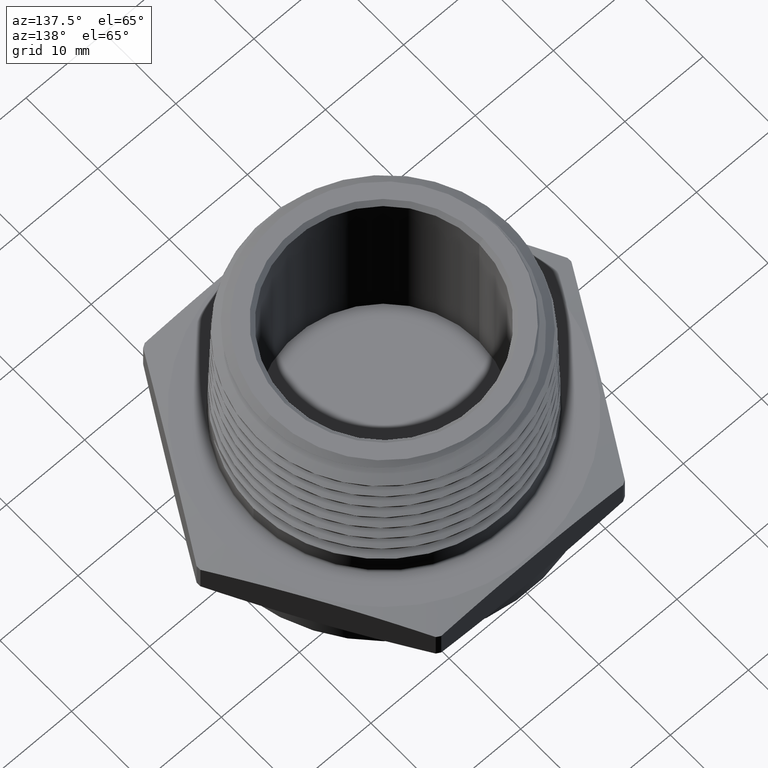
[diagram: clean part render]
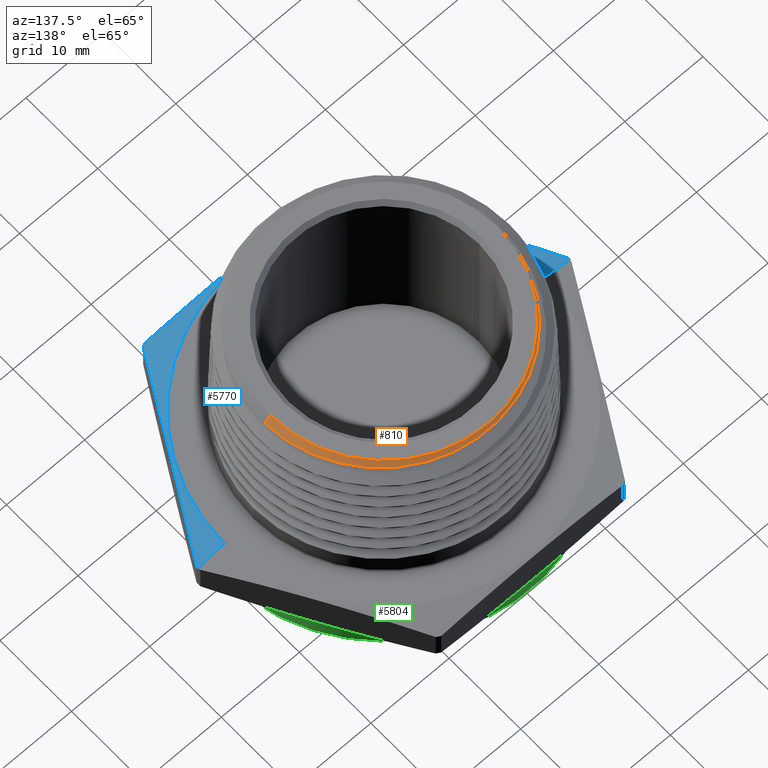
[diagram: same view with three faces highlighted in distinct colors, each labeled with its STEP entity id]
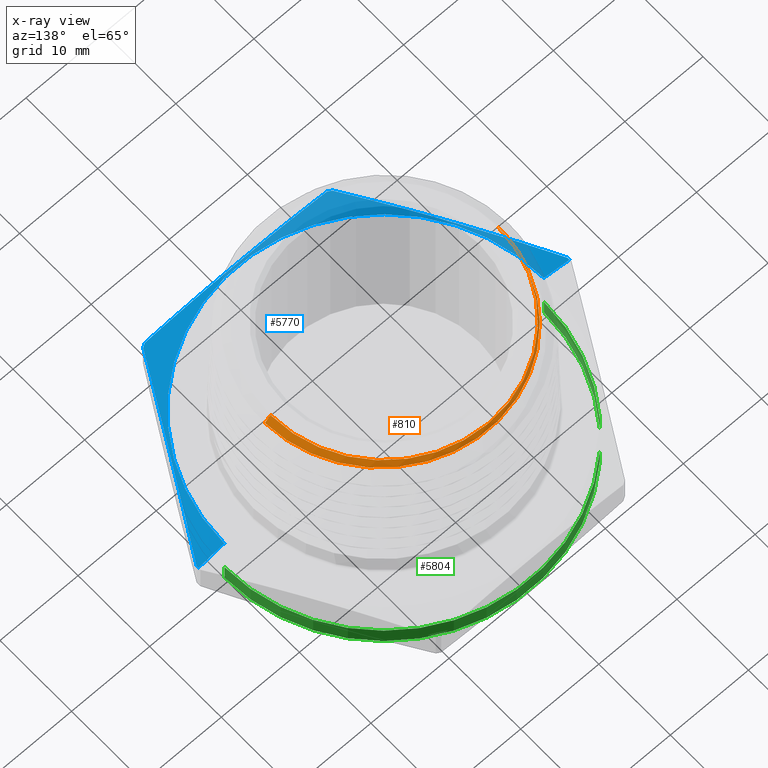
[diagram: x-ray of the same camera — body ghosted, the three highlighted faces saturated]
A machine part, auxiliary view with three faces highlighted in distinct colors.
The next image is the same camera in x-ray (body ghosted, the three faces saturated) — at least one of them is partly hidden behind the body in this view.
Their STEP definitions:

[orange] entity #810 — the highlighted conical surface has half-angle 45 deg.
#103 = LINE ( 'NONE', #6287, #107 ) ;
#104 = CIRCLE ( 'NONE', #3967, 0.5719999999999999500 ) ;
#105 = LINE ( 'NONE', #6220, #106 ) ;
#106 = VECTOR ( 'NONE', #6225, 39.37007874015748100 ) ;
#107 = VECTOR ( 'NONE', #6288, 39.37007874015748100 ) ;
#244 = FACE_OUTER_BOUND ( 'NONE', #1707, .T. ) ;
#810 = ADVANCED_FACE ( 'NONE', ( #244 ), #5546, .T. ) ;
#1672 = ORIENTED_EDGE ( 'NONE', *, *, #3870, .T. ) ;
#1673 = ORIENTED_EDGE ( 'NONE', *, *, #3871, .T. ) ;
#1674 = ORIENTED_EDGE ( 'NONE', *, *, #3872, .T. ) ;
#1675 = ORIENTED_EDGE ( 'NONE', *, *, #3873, .T. ) ;
#1707 = EDGE_LOOP ( 'NONE', ( #1675, #1674, #1673, #1672, #4657 ) ) ;
#3869 = EDGE_CURVE ( 'NONE', #4920, #4884, #105, .T. ) ;
#3870 = EDGE_CURVE ( 'NONE', #4927, #4884, #5841, .T. ) ;
#3871 = EDGE_CURVE ( 'NONE', #4929, #4927, #5842, .T. ) ;
#3872 = EDGE_CURVE ( 'NONE', #4924, #4929, #103, .T. ) ;
#3873 = EDGE_CURVE ( 'NONE', #4920, #4924, #104, .T. ) ;
#3919 = AXIS2_PLACEMENT_3D ( 'NONE', #6124, #6123, #6125 ) ;
#3967 = AXIS2_PLACEMENT_3D ( 'NONE', #6291, #6292, #6293 ) ;
#4412 = CARTESIAN_POINT ( 'NONE',  ( -0.5731157824945870600, -6.402768735150616600E-017, 0.9888842175054130000 ) ) ;
#4415 = CARTESIAN_POINT ( 'NONE',  ( 0.5719999999999999500, 7.351925070738971400E-017, 0.9900000000000001000 ) ) ;
#4444 = CARTESIAN_POINT ( 'NONE',  ( -0.5719999999999999500, 0.0000000000000000000, 0.9900000000000001000 ) ) ;
#4447 = CARTESIAN_POINT ( 'NONE',  ( -0.5710473003760741000, 0.04883394669261256100, 0.9888684468260414700 ) ) ;
#4449 = CARTESIAN_POINT ( 'NONE',  ( 0.6003489249177895700, 1.451294246634139900E-016, 0.9616510750822108200 ) ) ;
#4657 = ORIENTED_EDGE ( 'NONE', *, *, #3869, .F. ) ;
#4884 = VERTEX_POINT ( 'NONE', #4412 ) ;
#4920 = VERTEX_POINT ( 'NONE', #4444 ) ;
#4924 = VERTEX_POINT ( 'NONE', #4415 ) ;
#4927 = VERTEX_POINT ( 'NONE', #4447 ) ;
#4929 = VERTEX_POINT ( 'NONE', #4449 ) ;
#5546 = CONICAL_SURFACE ( 'NONE', #3919, 0.6592028279056130200, 0.7853981633974541600 ) ;
#5841 = B_SPLINE_CURVE_WITH_KNOTS ( 'NONE', 3,
 ( #6228, #6229, #6235, #6236 ),
 .UNSPECIFIED., .F., .F.,
 ( 4, 4 ),
 ( 2.659436816710744500E-006, 0.001243514361797791200 ),
 .UNSPECIFIED. ) ;
#5842 = B_SPLINE_CURVE_WITH_KNOTS ( 'NONE', 3,
 ( #6233, #6234, #6239, #6240, #6241, #6242, #6243, #6244, #6245, #6246, #6247, #6248, #6249, #6250, #6251, #6252, #6253, #6254, #6255, #6256, #6257, #6258, #6259, #6260, #6261, #6262, #6263, #6264, #6265, #6266, #6267, #6268, #6269, #6270, #6271, #6272, #6273, #6274, #6275, #6276, #6277, #6278, #6279, #6280, #6281, #6282, #6283, #6284, #6285, #6286 ),
 .UNSPECIFIED., .F., .F.,
 ( 4, 2, 2, 2, 2, 2, 2, 2, 2, 2, 2, 2, 2, 2, 2, 2, 2, 2, 2, 2, 2, 2, 2, 2, 4 ),
 ( 0.07556429552137339200, 0.07698891424477019600, 0.07841353296816699900, 0.08126277041496061900, 0.08268738913835742300, 0.08411200786175424000, 0.08696124530854784700, 0.08838586403194465000, 0.08981048275534145300, 0.09265972020213506000, 0.09408433892553186300, 0.09550895764892866600, 0.09835819509572227300, 0.09978281381911907600, 0.1012074325425158800, 0.1040566699893094900, 0.1069059074361030900, 0.1083305261594998800, 0.1097551448828966900, 0.1126043823296902800, 0.1140290010530870800, 0.1154536197764838800, 0.1183028572232774900, 0.1197274759466742900, 0.1211520946700711000 ),
 .UNSPECIFIED. ) ;
#6123 = DIRECTION ( 'NONE',  ( -0.0000000000000000000, -0.0000000000000000000, -1.000000000000000000 ) ) ;
#6124 = CARTESIAN_POINT ( 'NONE',  ( 0.0000000000000000000, 0.0000000000000000000, 0.9027971720943881500 ) ) ;
#6125 = DIRECTION ( 'NONE',  ( -1.000000000000000000, 0.0000000000000000000, 0.0000000000000000000 ) ) ;
#6220 = CARTESIAN_POINT ( 'NONE',  ( -0.6592028279056130200, 0.0000000000000000000, 0.9027971720943881500 ) ) ;
#6225 = DIRECTION ( 'NONE',  ( -0.7071067811865516800, 0.0000000000000000000, -0.7071067811865433500 ) ) ;
#6228 = CARTESIAN_POINT ( 'NONE',  ( -0.5710473003760741000, 0.04883394669261256100, 0.9888684468260414700 ) ) ;
#6229 = CARTESIAN_POINT ( 'NONE',  ( -0.5724338212565235300, 0.03255602563734828800, 0.9888724475821045700 ) ) ;
#6233 = CARTESIAN_POINT ( 'NONE',  ( 0.6003489249177895700, 1.451294246634139900E-016, 0.9616510750822108200 ) ) ;
#6234 = CARTESIAN_POINT ( 'NONE',  ( 0.6000732363552161400, 0.01858761569745257300, 0.9619267636447845800 ) ) ;
#6235 = CARTESIAN_POINT ( 'NONE',  ( -0.5731258646697530200, 0.01626922460404652000, 0.9888741353302471500 ) ) ;
#6236 = CARTESIAN_POINT ( 'NONE',  ( -0.5731157824945870600, -6.402768735150616600E-017, 0.9888842175054130000 ) ) ;
#6239 = CARTESIAN_POINT ( 'NONE',  ( 0.5989350494765193200, 0.03717477239179735300, 0.9622036111339674600 ) ) ;
#6240 = CARTESIAN_POINT ( 'NONE',  ( 0.5949046711552946600, 0.07434816211269725000, 0.9627590068471323400 ) ) ;
#6241 = CARTESIAN_POINT ( 'NONE',  ( 0.5919890574846097300, 0.09303364403351271900, 0.9630390480304841200 ) ) ;
#6242 = CARTESIAN_POINT ( 'NONE',  ( 0.5806908371224498400, 0.1481859819250520600, 0.9638757578234310500 ) ) ;
#6243 = CARTESIAN_POINT ( 'NONE',  ( 0.5698271110682180400, 0.1837768787901348200, 0.9644285039566874400 ) ) ;
#6244 = CARTESIAN_POINT ( 'NONE',  ( 0.5486474212559143700, 0.2354370990188204600, 0.9652602541773556100 ) ) ;
#6245 = CARTESIAN_POINT ( 'NONE',  ( 0.5407668630676264500, 0.2523671143134478300, 0.9655393451526211900 ) ) ;
#6246 = CARTESIAN_POINT ( 'NONE',  ( 0.5233195688552846300, 0.2856311836733430600, 0.9661007665422104400 ) ) ;
#6247 = CARTESIAN_POINT ( 'NONE',  ( 0.5137594619195979800, 0.3019281880691120900, 0.9663823717997966900 ) ) ;
#6248 = CARTESIAN_POINT ( 'NONE',  ( 0.4831520203107527200, 0.3488898042959569500, 0.9672195829443172000 ) ) ;
#6249 = CARTESIAN_POINT ( 'NONE',  ( 0.4600165343549558200, 0.3779945035718563800, 0.9677755588220768900 ) ) ;
#6250 = CARTESIAN_POINT ( 'NONE',  ( 0.4212286786767284200, 0.4183558434108202200, 0.9686138534424612000 ) ) ;
#6251 = CARTESIAN_POINT ( 'NONE',  ( 0.4075658298678746500, 0.4312960954091950000, 0.9688963202587470600 ) ) ;
#6252 = CARTESIAN_POINT ( 'NONE',  ( 0.3790241588013773000, 0.4558461297016938000, 0.9694624448605696500 ) ) ;
#6253 = CARTESIAN_POINT ( 'NONE',  ( 0.3642780356287145200, 0.4673507346880662100, 0.9697430456486924000 ) ) ;
#6254 = CARTESIAN_POINT ( 'NONE',  ( 0.3186556270342336700, 0.4996209750764872800, 0.9705822614539271200 ) ) ;
#6255 = CARTESIAN_POINT ( 'NONE',  ( 0.2864057191434908300, 0.5181598231094874900, 0.9711417277586502600 ) ) ;
#6256 = CARTESIAN_POINT ( 'NONE',  ( 0.2352245649864923800, 0.5414186321692576700, 0.9719884355867389700 ) ) ;
#6257 = CARTESIAN_POINT ( 'NONE',  ( 0.2176290813559556600, 0.5484199366889465100, 0.9722739128348315600 ) ) ;
#6258 = CARTESIAN_POINT ( 'NONE',  ( 0.1822393680069179200, 0.5605785998740207000, 0.9728399472455107100 ) ) ;
#6259 = CARTESIAN_POINT ( 'NONE',  ( 0.1643634321316417000, 0.5657806178790346600, 0.9731211133481619800 ) ) ;
#6260 = CARTESIAN_POINT ( 'NONE',  ( 0.1102040051871851400, 0.5788107650661300500, 0.9739625730157389600 ) ) ;
#6261 = CARTESIAN_POINT ( 'NONE',  ( 0.07339302927666138700, 0.5840827200533209600, 0.9745248357054928600 ) ) ;
#6262 = CARTESIAN_POINT ( 'NONE',  ( 0.01707939638013577700, 0.5866733085706965500, 0.9753789521480762400 ) ) ;
#6263 = CARTESIAN_POINT ( 'NONE',  ( -0.001798906118421606800, 0.5866292519187529300, 0.9756648350302132800 ) ) ;
#6264 = CARTESIAN_POINT ( 'NONE',  ( -0.03907608188203218200, 0.5847603048510128200, 0.9762326701540377000 ) ) ;
#6265 = CARTESIAN_POINT ( 'NONE',  ( -0.05757500984745463800, 0.5829423836825901000, 0.9765152277992327200 ) ) ;
#6266 = CARTESIAN_POINT ( 'NONE',  ( -0.1126594313444263800, 0.5748803703930739400, 0.9773612706635251800 ) ) ;
#6267 = CARTESIAN_POINT ( 'NONE',  ( -0.1488358129717253500, 0.5660489895973815900, 0.9779272341222663400 ) ) ;
#6268 = CARTESIAN_POINT ( 'NONE',  ( -0.2200385180292532300, 0.5411141672924901800, 0.9790772525848306900 ) ) ;
#6269 = CARTESIAN_POINT ( 'NONE',  ( -0.2538721937378148900, 0.5254224310857155100, 0.9796455792966574100 ) ) ;
#6270 = CARTESIAN_POINT ( 'NONE',  ( -0.3020339597548619700, 0.4972575459663258200, 0.9804986739193822800 ) ) ;
#6271 = CARTESIAN_POINT ( 'NONE',  ( -0.3176558748128074900, 0.4870917304100394500, 0.9807830781977744400 ) ) ;
#6272 = CARTESIAN_POINT ( 'NONE',  ( -0.3480151422091841700, 0.4651682544163461800, 0.9813576439184379400 ) ) ;
#6273 = CARTESIAN_POINT ( 'NONE',  ( -0.3628147073089506600, 0.4533481846642707400, 0.9816483219105138800 ) ) ;
#6274 = CARTESIAN_POINT ( 'NONE',  ( -0.4049819428716281400, 0.4161752023060952300, 0.9825104827527501000 ) ) ;
#6275 = CARTESIAN_POINT ( 'NONE',  ( -0.4303770259811615700, 0.3889893821317873500, 0.9830804485260878900 ) ) ;
#6276 = CARTESIAN_POINT ( 'NONE',  ( -0.4644498876695880600, 0.3446536968220115200, 0.9839407040076722000 ) ) ;
#6277 = CARTESIAN_POINT ( 'NONE',  ( -0.4751332227363855900, 0.3292784750598428100, 0.9842280017560798300 ) ) ;
#6278 = CARTESIAN_POINT ( 'NONE',  ( -0.4950992050579710000, 0.2972887220931367800, 0.9848099138048384000 ) ) ;
#6279 = CARTESIAN_POINT ( 'NONE',  ( -0.5042356926912332500, 0.2809058767302489700, 0.9850995940238611600 ) ) ;
#6280 = CARTESIAN_POINT ( 'NONE',  ( -0.5290985633177736100, 0.2307901551903368800, 0.9859629199106558800 ) ) ;
#6281 = CARTESIAN_POINT ( 'NONE',  ( -0.5423412973290816500, 0.1960285437307186000, 0.9865360208867406400 ) ) ;
#6282 = CARTESIAN_POINT ( 'NONE',  ( -0.5571300505649069400, 0.1418286134634841000, 0.9874056835756186400 ) ) ;
#6283 = CARTESIAN_POINT ( 'NONE',  ( -0.5612143174491501800, 0.1233483057429700500, 0.9876978361014199200 ) ) ;
#6284 = CARTESIAN_POINT ( 'NONE',  ( -0.5675052333006317400, 0.08627915767711481800, 0.9882814769487638900 ) ) ;
#6285 = CARTESIAN_POINT ( 'NONE',  ( -0.5697339489273478600, 0.06763670618840776600, 0.9885732075468080000 ) ) ;
#6286 = CARTESIAN_POINT ( 'NONE',  ( -0.5710473003760741000, 0.04883394669261256100, 0.9888684468260414700 ) ) ;
#6287 = CARTESIAN_POINT ( 'NONE',  ( 0.6592028279056130200, 8.072906331834924400E-017, 0.9027971720943881500 ) ) ;
#6288 = DIRECTION ( 'NONE',  ( 0.7071067811865516800, 8.659560562354983400E-017, -0.7071067811865433500 ) ) ;
#6291 = CARTESIAN_POINT ( 'NONE',  ( 0.0000000000000000000, 0.0000000000000000000, 0.9900000000000001000 ) ) ;
#6292 = DIRECTION ( 'NONE',  ( -0.0000000000000000000, -0.0000000000000000000, -1.000000000000000000 ) ) ;
#6293 = DIRECTION ( 'NONE',  ( -1.000000000000000000, 0.0000000000000000000, 0.0000000000000000000 ) ) ;

[blue] entity #5770 — the highlighted conical surface has half-angle 78 deg.
#63 = LINE ( 'NONE', #5138, #69 ) ;
#69 = VECTOR ( 'NONE', #5201, 39.37007874015748100 ) ;
#72 = CIRCLE ( 'NONE', #3953, 0.9350809387790897100 ) ;
#73 = LINE ( 'NONE', #5275, #78 ) ;
#78 = VECTOR ( 'NONE', #5223, 39.37007874015748900 ) ;
#98 = CIRCLE ( 'NONE', #3964, 0.8049999999999998300 ) ;
#114 = CIRCLE ( 'NONE', #3970, 0.9350809387790897100 ) ;
#127 = CIRCLE ( 'NONE', #3971, 0.9350809387790897100 ) ;
#135 = CIRCLE ( 'NONE', #3973, 0.9350809387790897100 ) ;
#159 = FACE_OUTER_BOUND ( 'NONE', #1732, .T. ) ;
#166 = CONICAL_SURFACE ( 'NONE', #3990, 0.8049999999999998300, 1.361356816555583800 ) ;
#1732 = EDGE_LOOP ( 'NONE', ( #4663, #4662, #4661, #4660, #4659, #4658, #5822, #5819, #4711, #4710 ) ) ;
#3828 = EDGE_CURVE ( 'NONE', #4837, #4755, #63, .T. ) ;
#3832 = EDGE_CURVE ( 'NONE', #4770, #4790, #72, .T. ) ;
#3836 = EDGE_CURVE ( 'NONE', #4801, #4790, #73, .T. ) ;
#3858 = EDGE_CURVE ( 'NONE', #4837, #4801, #98, .T. ) ;
#3883 = EDGE_CURVE ( 'NONE', #4890, #4922, #5850, .T. ) ;
#3884 = EDGE_CURVE ( 'NONE', #4760, #4770, #5851, .T. ) ;
#3891 = EDGE_CURVE ( 'NONE', #4755, #4926, #114, .T. ) ;
#3894 = EDGE_CURVE ( 'NONE', #4763, #4890, #127, .T. ) ;
#3899 = EDGE_CURVE ( 'NONE', #4922, #4760, #135, .T. ) ;
#3910 = EDGE_CURVE ( 'NONE', #4926, #4763, #5855, .T. ) ;
#3953 = AXIS2_PLACEMENT_3D ( 'NONE', #5220, #5221, #5222 ) ;
#3964 = AXIS2_PLACEMENT_3D ( 'NONE', #5487, #5488, #5489 ) ;
#3970 = AXIS2_PLACEMENT_3D ( 'NONE', #6548, #6549, #6550 ) ;
#3971 = AXIS2_PLACEMENT_3D ( 'NONE', #6556, #6557, #6558 ) ;
#3973 = AXIS2_PLACEMENT_3D ( 'NONE', #6566, #6567, #6568 ) ;
#3990 = AXIS2_PLACEMENT_3D ( 'NONE', #4474, #4475, #4473 ) ;
#4353 = CARTESIAN_POINT ( 'NONE',  ( -0.4765993594327140900, -0.8045056946077573400, 0.1723504429143089300 ) ) ;
#4355 = CARTESIAN_POINT ( 'NONE',  ( 0.4765993594327142000, -0.8045056946077573400, 0.1723504429143087900 ) ) ;
#4361 = CARTESIAN_POINT ( 'NONE',  ( -0.9350220487359204300, -0.01049430539224296300, 0.1723504429143089500 ) ) ;
#4372 = CARTESIAN_POINT ( 'NONE',  ( -0.8049999999999998300, 0.0000000000000000000, 0.2000000000000000100 ) ) ;
#4380 = CARTESIAN_POINT ( 'NONE',  ( -0.9350809387790897100, 0.0000000000000000000, 0.1723504429143089500 ) ) ;
#4388 = CARTESIAN_POINT ( 'NONE',  ( 0.8049999999999998300, 9.858406733136191200E-017, 0.1999999999999998200 ) ) ;
#4414 = CARTESIAN_POINT ( 'NONE',  ( -0.4584226893032063400, -0.8149999999999997200, 0.1723504429143089300 ) ) ;
#4416 = CARTESIAN_POINT ( 'NONE',  ( 0.4584226893032063400, -0.8149999999999997200, 0.1723504429143087900 ) ) ;
#4435 = CARTESIAN_POINT ( 'NONE',  ( 0.9350220487359204300, -0.01049430539224262100, 0.1723504429143087600 ) ) ;
#4473 = DIRECTION ( 'NONE',  ( -1.000000000000000000, 0.0000000000000000000, 1.272599997048570100E-016 ) ) ;
#4474 = CARTESIAN_POINT ( 'NONE',  ( 2.509973095904768000E-017, 0.0000000000000000000, 0.1999999999999999300 ) ) ;
#4475 = DIRECTION ( 'NONE',  ( -1.254986547952384500E-016, -0.0000000000000000000, -1.000000000000000000 ) ) ;
#4658 = ORIENTED_EDGE ( 'NONE', *, *, #3899, .F. ) ;
#4659 = ORIENTED_EDGE ( 'NONE', *, *, #3884, .F. ) ;
#4660 = ORIENTED_EDGE ( 'NONE', *, *, #3832, .F. ) ;
#4661 = ORIENTED_EDGE ( 'NONE', *, *, #3836, .T. ) ;
#4662 = ORIENTED_EDGE ( 'NONE', *, *, #3858, .T. ) ;
#4663 = ORIENTED_EDGE ( 'NONE', *, *, #3828, .F. ) ;
#4710 = ORIENTED_EDGE ( 'NONE', *, *, #3891, .F. ) ;
#4711 = ORIENTED_EDGE ( 'NONE', *, *, #3910, .F. ) ;
#4755 = VERTEX_POINT ( 'NONE', #6631 ) ;
#4760 = VERTEX_POINT ( 'NONE', #4353 ) ;
#4763 = VERTEX_POINT ( 'NONE', #4355 ) ;
#4770 = VERTEX_POINT ( 'NONE', #4361 ) ;
#4790 = VERTEX_POINT ( 'NONE', #4380 ) ;
#4801 = VERTEX_POINT ( 'NONE', #4372 ) ;
#4837 = VERTEX_POINT ( 'NONE', #4388 ) ;
#4890 = VERTEX_POINT ( 'NONE', #4416 ) ;
#4922 = VERTEX_POINT ( 'NONE', #4414 ) ;
#4926 = VERTEX_POINT ( 'NONE', #4435 ) ;
#5138 = CARTESIAN_POINT ( 'NONE',  ( 0.8049999999999998300, 9.858406733136191200E-017, 0.1999999999999998200 ) ) ;
#5201 = DIRECTION ( 'NONE',  ( 0.9781476007338069100, 1.197885328332319900E-016, -0.2079116908177528500 ) ) ;
#5220 = CARTESIAN_POINT ( 'NONE',  ( 2.162974873910929900E-017, 0.0000000000000000000, 0.1723504429143088700 ) ) ;
#5221 = DIRECTION ( 'NONE',  ( -1.254986547952384500E-016, -0.0000000000000000000, -1.000000000000000000 ) ) ;
#5222 = DIRECTION ( 'NONE',  ( -1.000000000000000000, 0.0000000000000000000, 1.095566121753788100E-016 ) ) ;
#5223 = DIRECTION ( 'NONE',  ( -0.9781476007338071300, 0.0000000000000000000, -0.2079116908177526300 ) ) ;
#5275 = CARTESIAN_POINT ( 'NONE',  ( -0.8049999999999998300, 0.0000000000000000000, 0.2000000000000000100 ) ) ;
#5487 = CARTESIAN_POINT ( 'NONE',  ( 2.509973095904768000E-017, 0.0000000000000000000, 0.1999999999999999300 ) ) ;
#5488 = DIRECTION ( 'NONE',  ( -1.254986547952384500E-016, -0.0000000000000000000, -1.000000000000000000 ) ) ;
#5489 = DIRECTION ( 'NONE',  ( -1.000000000000000000, 0.0000000000000000000, 1.272599997048570100E-016 ) ) ;
#5770 = ADVANCED_FACE ( 'NONE', ( #159 ), #166, .T. ) ;
#5819 = ORIENTED_EDGE ( 'NONE', *, *, #3894, .F. ) ;
#5822 = ORIENTED_EDGE ( 'NONE', *, *, #3883, .F. ) ;
#5850 = B_SPLINE_CURVE_WITH_KNOTS ( 'NONE', 3,
 ( #6516, #6466, #6465, #6518, #6519, #6520, #6521, #6522, #6523, #6524 ),
 .UNSPECIFIED., .F., .F.,
 ( 4, 2, 2, 2, 4 ),
 ( 0.04548648765936419400, 0.05132590599875511100, 0.05716532433814602900, 0.06300474267753694600, 0.06884416101692786300 ),
 .UNSPECIFIED. ) ;
#5851 = B_SPLINE_CURVE_WITH_KNOTS ( 'NONE', 3,
 ( #6527, #6526, #6515, #6528, #6529, #6530, #6531, #6532, #6533 ),
 .UNSPECIFIED., .F., .F.,
 ( 4, 2, 1, 2, 4 ),
 ( 1.919160924773306300E-006, 0.005823887315075492400, 0.01164585546922621200, 0.01746782362337692700, 0.02328979177752764000 ),
 .UNSPECIFIED. ) ;
#5855 = B_SPLINE_CURVE_WITH_KNOTS ( 'NONE', 3,
 ( #6619, #6614, #6615, #6620, #6621, #6622, #6623, #6624, #6625 ),
 .UNSPECIFIED., .F., .F.,
 ( 4, 2, 1, 2, 4 ),
 ( 1.919160924749535500E-006, 0.005823887315075467300, 0.01164585546922618400, 0.01746782362337690300, 0.02328979177752761900 ),
 .UNSPECIFIED. ) ;
#6465 = CARTESIAN_POINT ( 'NONE',  ( 0.3059085874836962000, -0.8149999999999997200, 0.1867333030325142000 ) ) ;
#6466 = CARTESIAN_POINT ( 'NONE',  ( 0.3821825396903712500, -0.8149999999999997200, 0.1802951000004681100 ) ) ;
#6515 = CARTESIAN_POINT ( 'NONE',  ( -0.5530031409832485400, -0.6721704630718383600, 0.1867569098631996800 ) ) ;
#6516 = CARTESIAN_POINT ( 'NONE',  ( 0.4584226893032063400, -0.8149999999999997200, 0.1723504429143087900 ) ) ;
#6518 = CARTESIAN_POINT ( 'NONE',  ( 0.1532691551096953300, -0.8149999999999996100, 0.1955306532691248300 ) ) ;
#6519 = CARTESIAN_POINT ( 'NONE',  ( 0.07690311260575342900, -0.8149999999999996100, 0.1978647392526785800 ) ) ;
#6520 = CARTESIAN_POINT ( 'NONE',  ( -0.07593328554225364800, -0.8149999999999995000, 0.1978840681878027100 ) ) ;
#6521 = CARTESIAN_POINT ( 'NONE',  ( -0.1524036573554993200, -0.8149999999999999500, 0.1955685905400196500 ) ) ;
#6522 = CARTESIAN_POINT ( 'NONE',  ( -0.3054378654914723400, -0.8149999999999996100, 0.1867722747430926900 ) ) ;
#6523 = CARTESIAN_POINT ( 'NONE',  ( -0.3820727360291162900, -0.8149999999999996100, 0.1803065421663073400 ) ) ;
#6524 = CARTESIAN_POINT ( 'NONE',  ( -0.4584226893032063400, -0.8149999999999997200, 0.1723504429143089300 ) ) ;
#6526 = CARTESIAN_POINT ( 'NONE',  ( -0.5148012502079814000, -0.7383380788397977400, 0.1803121513787769900 ) ) ;
#6527 = CARTESIAN_POINT ( 'NONE',  ( -0.4765993594327140900, -0.8045056946077573400, 0.1723504429143089300 ) ) ;
#6528 = CARTESIAN_POINT ( 'NONE',  ( -0.6294069225337829400, -0.5398352315359192800, 0.1955505306662888000 ) ) ;
#6529 = CARTESIAN_POINT ( 'NONE',  ( -0.7058107040843174500, -0.4075000000000003600, 0.2001983381003110100 ) ) ;
#6530 = CARTESIAN_POINT ( 'NONE',  ( -0.7822144856348517400, -0.2751647684640809400, 0.1955505306662887500 ) ) ;
#6531 = CARTESIAN_POINT ( 'NONE',  ( -0.8586182671853861400, -0.1428295369281619400, 0.1867569098631997600 ) ) ;
#6532 = CARTESIAN_POINT ( 'NONE',  ( -0.8968201579606531700, -0.07666192116020245600, 0.1803121513787769000 ) ) ;
#6533 = CARTESIAN_POINT ( 'NONE',  ( -0.9350220487359204300, -0.01049430539224296300, 0.1723504429143089500 ) ) ;
#6548 = CARTESIAN_POINT ( 'NONE',  ( 2.162974873910929900E-017, 0.0000000000000000000, 0.1723504429143088700 ) ) ;
#6549 = DIRECTION ( 'NONE',  ( -1.254986547952384500E-016, -0.0000000000000000000, -1.000000000000000000 ) ) ;
#6550 = DIRECTION ( 'NONE',  ( -1.000000000000000000, 0.0000000000000000000, 1.095566121753788100E-016 ) ) ;
#6556 = CARTESIAN_POINT ( 'NONE',  ( 2.162974873910929900E-017, 0.0000000000000000000, 0.1723504429143088700 ) ) ;
#6557 = DIRECTION ( 'NONE',  ( -1.254986547952384500E-016, -0.0000000000000000000, -1.000000000000000000 ) ) ;
#6558 = DIRECTION ( 'NONE',  ( -1.000000000000000000, 0.0000000000000000000, 1.095566121753788100E-016 ) ) ;
#6566 = CARTESIAN_POINT ( 'NONE',  ( 2.162974873910929900E-017, 0.0000000000000000000, 0.1723504429143088700 ) ) ;
#6567 = DIRECTION ( 'NONE',  ( -1.254986547952384500E-016, -0.0000000000000000000, -1.000000000000000000 ) ) ;
#6568 = DIRECTION ( 'NONE',  ( -1.000000000000000000, 0.0000000000000000000, 1.095566121753788100E-016 ) ) ;
#6614 = CARTESIAN_POINT ( 'NONE',  ( 0.8968201579606535100, -0.07666192116020210900, 0.1803121513787767600 ) ) ;
#6615 = CARTESIAN_POINT ( 'NONE',  ( 0.8586182671853862500, -0.1428295369281616700, 0.1867569098631995100 ) ) ;
#6619 = CARTESIAN_POINT ( 'NONE',  ( 0.9350220487359204300, -0.01049430539224262100, 0.1723504429143087600 ) ) ;
#6620 = CARTESIAN_POINT ( 'NONE',  ( 0.7822144856348515200, -0.2751647684640808300, 0.1955505306662885200 ) ) ;
#6621 = CARTESIAN_POINT ( 'NONE',  ( 0.7058107040843174500, -0.4074999999999997000, 0.2001983381003107400 ) ) ;
#6622 = CARTESIAN_POINT ( 'NONE',  ( 0.6294069225337828300, -0.5398352315359189500, 0.1955505306662886400 ) ) ;
#6623 = CARTESIAN_POINT ( 'NONE',  ( 0.5530031409832486500, -0.6721704630718381400, 0.1867569098631996800 ) ) ;
#6624 = CARTESIAN_POINT ( 'NONE',  ( 0.5148012502079814000, -0.7383380788397977400, 0.1803121513787768200 ) ) ;
#6625 = CARTESIAN_POINT ( 'NONE',  ( 0.4765993594327142000, -0.8045056946077573400, 0.1723504429143087900 ) ) ;
#6631 = CARTESIAN_POINT ( 'NONE',  ( 0.9350809387790897100, 1.145143878619514100E-016, 0.1723504429143087600 ) ) ;

[green] entity #5804 — the highlighted cylindrical surface (partial cylindrical patch) has radius 20.447 mm, axis along (-0, -0, 1).
#10 = CIRCLE ( 'NONE', #3937, 0.8049999999999998300 ) ;
#51 = LINE ( 'NONE', #3571, #52 ) ;
#52 = VECTOR ( 'NONE', #3572, 39.37007874015748100 ) ;
#57 = CIRCLE ( 'NONE', #3947, 0.8049999999999998300 ) ;
#88 = LINE ( 'NONE', #5458, #90 ) ;
#90 = VECTOR ( 'NONE', #5459, 39.37007874015748100 ) ;
#214 = FACE_OUTER_BOUND ( 'NONE', #283, .T. ) ;
#216 = CYLINDRICAL_SURFACE ( 'NONE', #1540, 0.8049999999999998300 ) ;
#283 = EDGE_LOOP ( 'NONE', ( #1593, #1592, #1591, #1590 ) ) ;
#744 = DIRECTION ( 'NONE',  ( 1.000000000000000000, 0.0000000000000000000, 0.0000000000000000000 ) ) ;
#746 = CARTESIAN_POINT ( 'NONE',  ( 0.0000000000000000000, 0.0000000000000000000, -0.1200000000000000000 ) ) ;
#747 = DIRECTION ( 'NONE',  ( -0.0000000000000000000, -0.0000000000000000000, 1.000000000000000000 ) ) ;
#1540 = AXIS2_PLACEMENT_3D ( 'NONE', #746, #747, #744 ) ;
#1590 = ORIENTED_EDGE ( 'NONE', *, *, #3849, .F. ) ;
#1591 = ORIENTED_EDGE ( 'NONE', *, *, #3811, .T. ) ;
#1592 = ORIENTED_EDGE ( 'NONE', *, *, #3807, .T. ) ;
#1593 = ORIENTED_EDGE ( 'NONE', *, *, #3771, .T. ) ;
#3571 = CARTESIAN_POINT ( 'NONE',  ( -0.8049999999999998300, 9.858406733136190000E-017, -0.1200000000000000000 ) ) ;
#3572 = DIRECTION ( 'NONE',  ( -0.0000000000000000000, -0.0000000000000000000, 1.000000000000000000 ) ) ;
#3677 = CARTESIAN_POINT ( 'NONE',  ( 0.0000000000000000000, 0.0000000000000000000, -0.008097840331950318200 ) ) ;
#3678 = DIRECTION ( 'NONE',  ( -6.274932739761922300E-017, -0.0000000000000000000, -1.000000000000000000 ) ) ;
#3679 = DIRECTION ( 'NONE',  ( -1.000000000000000000, 0.0000000000000000000, 6.230437485550291600E-017 ) ) ;
#3771 = EDGE_CURVE ( 'NONE', #4757, #4758, #10, .T. ) ;
#3807 = EDGE_CURVE ( 'NONE', #4758, #4832, #51, .T. ) ;
#3811 = EDGE_CURVE ( 'NONE', #4832, #4804, #57, .T. ) ;
#3849 = EDGE_CURVE ( 'NONE', #4757, #4804, #88, .T. ) ;
#3937 = AXIS2_PLACEMENT_3D ( 'NONE', #5629, #5628, #5627 ) ;
#3947 = AXIS2_PLACEMENT_3D ( 'NONE', #3677, #3678, #3679 ) ;
#4375 = CARTESIAN_POINT ( 'NONE',  ( 0.8049999999999998300, 0.0000000000000000000, -0.008097840331950368500 ) ) ;
#4384 = CARTESIAN_POINT ( 'NONE',  ( -0.8049999999999998300, 9.858406733136190000E-017, -0.008097840331950267900 ) ) ;
#4757 = VERTEX_POINT ( 'NONE', #6596 ) ;
#4758 = VERTEX_POINT ( 'NONE', #6597 ) ;
#4804 = VERTEX_POINT ( 'NONE', #4375 ) ;
#4832 = VERTEX_POINT ( 'NONE', #4384 ) ;
#5458 = CARTESIAN_POINT ( 'NONE',  ( 0.8049999999999998300, 0.0000000000000000000, -0.1200000000000000000 ) ) ;
#5459 = DIRECTION ( 'NONE',  ( -0.0000000000000000000, -0.0000000000000000000, 1.000000000000000000 ) ) ;
#5627 = DIRECTION ( 'NONE',  ( -1.000000000000000000, 0.0000000000000000000, 0.0000000000000000000 ) ) ;
#5628 = DIRECTION ( 'NONE',  ( 0.0000000000000000000, 0.0000000000000000000, 1.000000000000000000 ) ) ;
#5629 = CARTESIAN_POINT ( 'NONE',  ( 0.0000000000000000000, 0.0000000000000000000, -0.1000000000000014500 ) ) ;
#5804 = ADVANCED_FACE ( 'NONE', ( #214 ), #216, .T. ) ;
#6596 = CARTESIAN_POINT ( 'NONE',  ( 0.8049999999999998300, 0.0000000000000000000, -0.1000000000000014500 ) ) ;
#6597 = CARTESIAN_POINT ( 'NONE',  ( -0.8049999999999998300, 9.858406733136190000E-017, -0.1000000000000014500 ) ) ;